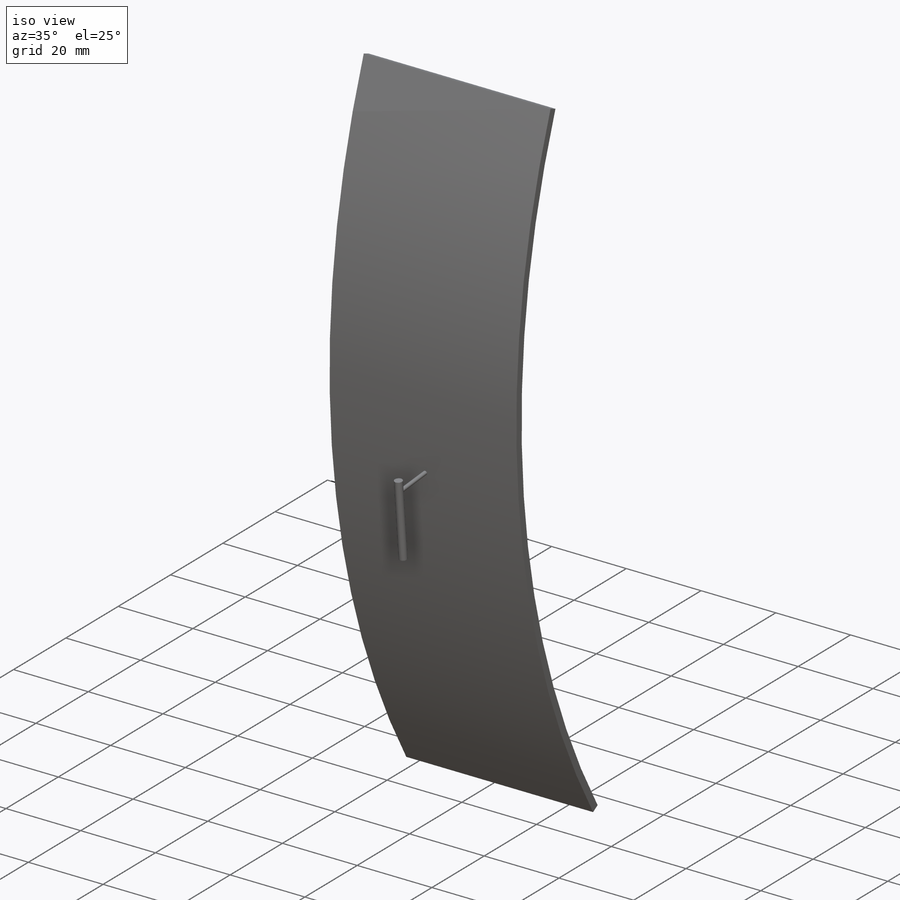
[diagram: iso view]
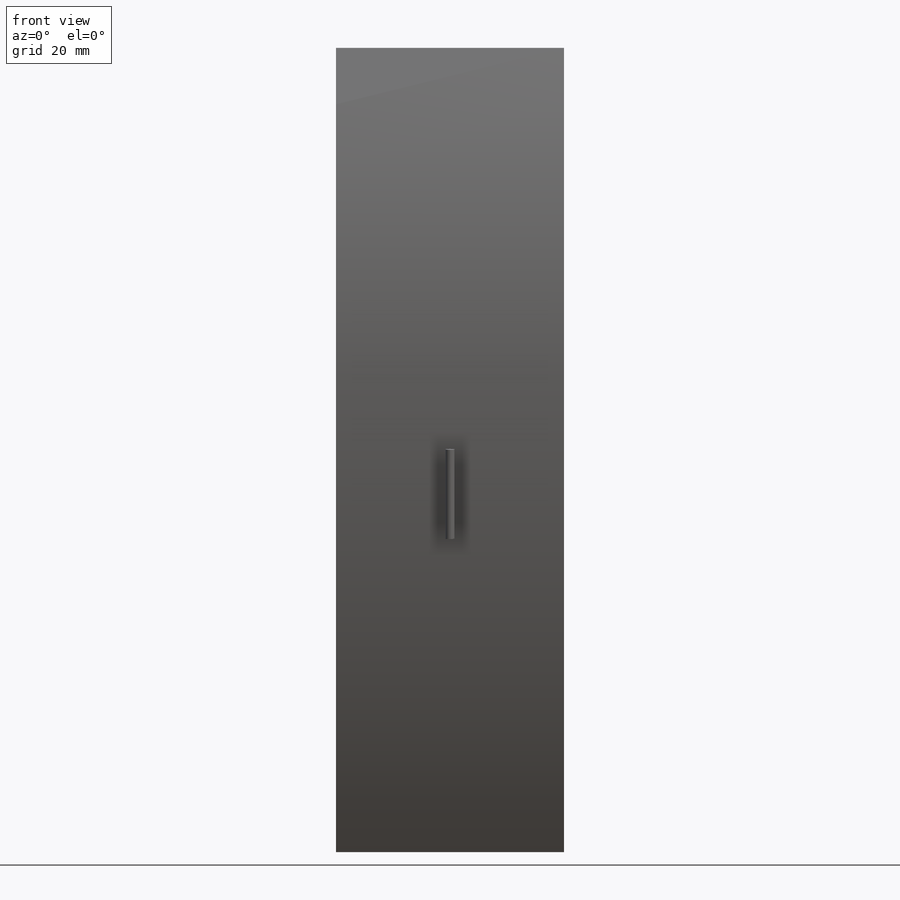
[diagram: front view]
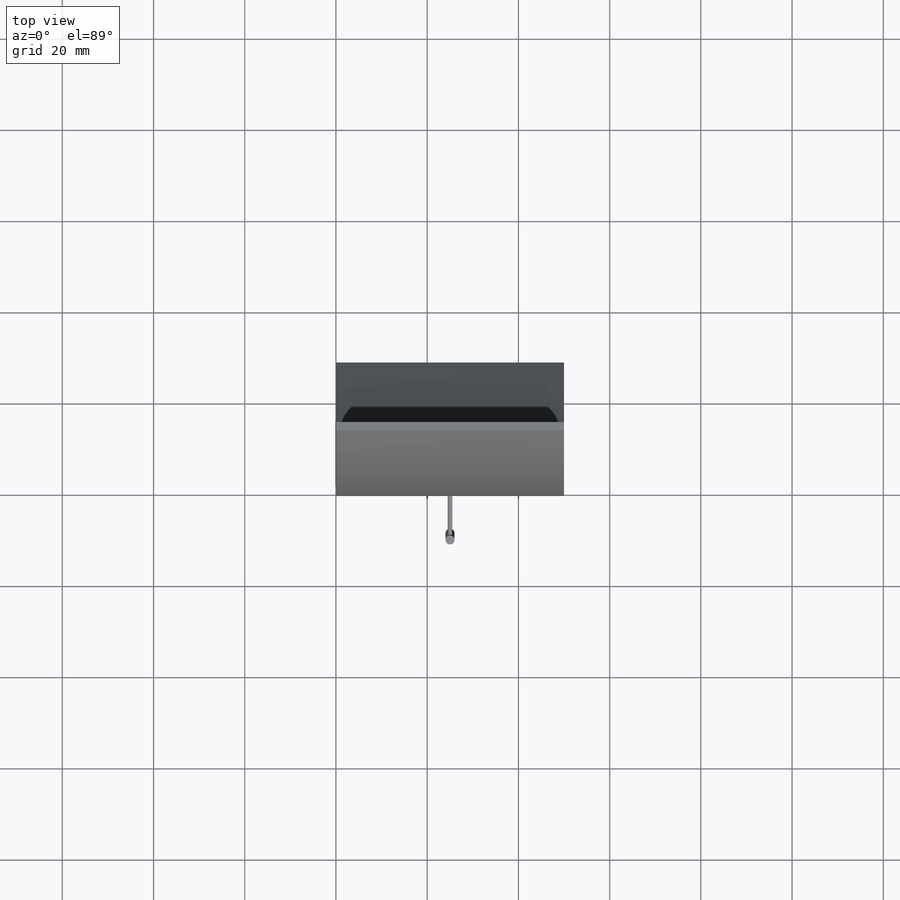
[diagram: top view]
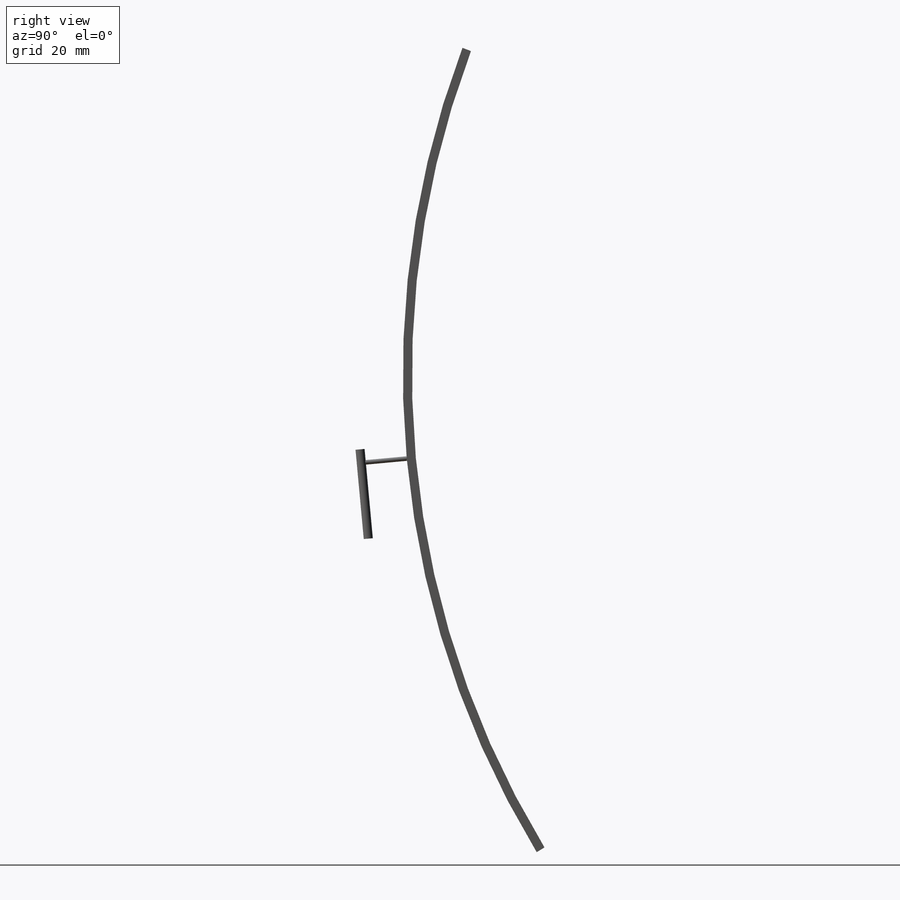
[diagram: right view]
SOLIDWORKS PART (.sldprt)
format: sldprt  version: not decoded by parser v0  size: 138,752 bytes
history: native  units: mm
features: sketch x3, extrude x2, plane x2, material x1, revolve x1 (+12 scaffold rows collapsed)
feature tree (21):
  scaffold x12  (default folders/planes/origin — collapsed)
  material  "Material <not specified>"
  sketch  "Sketch1"  dims[c1.D1=190.0mm c2.D1=128.0deg]
  extrude  "Boss-Extrude1"  Depth=50mm
  plane  "Plane1"
  sketch  "Sketch2"  dims[D1=0.4mm]
  extrude  "Boss-Extrude2"  Depth=10mm
  plane  "Plane2"  Offset=0mm
  sketch  "Sketch3"  dims[D1=1.0mm]
  revolve  "Revolve1"  Angle=360deg
decode coverage: 6 of 6 modeling features carry decoded parameters
note: suppression state not decoded; provenance and decode notes live in map.json
